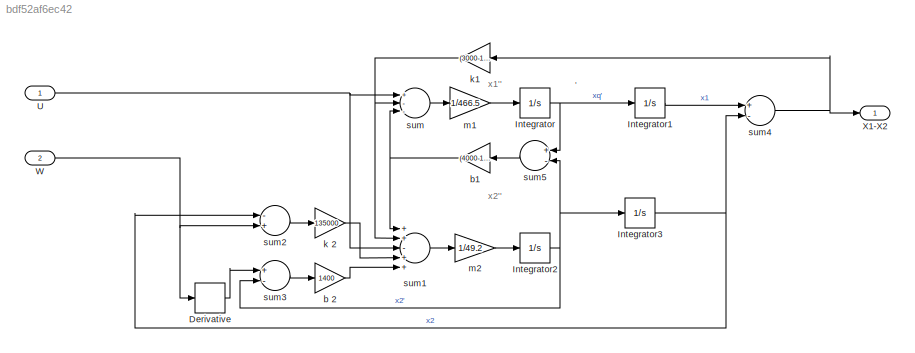
MODEL slx_bdf52af6ec42
KIND model
CONFIG AbsTol = auto
CONFIG FixedStep = auto
CONFIG MaxStep = auto
CONFIG MinStep = auto
CONFIG RelTol = 1e-3
CONFIG SampleTimeConstraint = Unconstrained
CONFIG Solver = VariableStepAuto
CONFIG SolverMode = Auto
CONFIG SolverName = VariableStepAuto
CONFIG StartTime = 0.0
CONFIG StopTime = 10.0
BLOCK [Gain]  b1
  Gain = (4000-1000)*rand + 1000
BLOCK [Gain]  k1
  Gain = (3000-1000)*rand + 1000
BLOCK [Derivative] Derivative
BLOCK [Integrator] Integrator
  Ports = [1, 1]
BLOCK [Integrator] Integrator1
  Ports = [1, 1]
BLOCK [Integrator] Integrator2
  Ports = [1, 1]
BLOCK [Integrator] Integrator3
  Ports = [1, 1]
BLOCK [Inport] U
  IconDisplay = Port number
BLOCK [Inport] W
  IconDisplay = Port number
  Port = 2
BLOCK [Outport] X1-X2
  IconDisplay = Port number
BLOCK [Gain] b 2
  Gain = 1400
BLOCK [Gain] k 2
  Gain = 135000
BLOCK [Gain] m1
  Gain = 1/466.5
BLOCK [Gain] m2
  Gain = 1/49.2
BLOCK [Sum] sum
  Inputs = +--
  Ports = [3, 1]
BLOCK [Sum] sum1
  Inputs = ++-++
  Ports = [5, 1]
BLOCK [Sum] sum2
  Inputs = -+
  Ports = [2, 1]
BLOCK [Sum] sum3
  Inputs = +-
  Ports = [2, 1]
BLOCK [Sum] sum4
  Inputs = +-
  Ports = [2, 1]
BLOCK [Sum] sum5
  Inputs = +-
  Ports = [2, 1]
ANNOTATION (root): '
ANNOTATION (root): x1''
ANNOTATION (root): x2''
NET  b1:1 -> sum1:1, sum:3
NET  k1:1 -> sum1:2, sum:2
LINE Derivative:1 -> sum3:1
LINE Integrator1:1 -> sum4:1
NET Integrator2:1 -> Integrator3:1, sum3:2, sum5:2
NET Integrator3:1 -> sum2:1, sum4:2
NET Integrator:1 -> Integrator1:1, sum5:1
NET U:1 -> sum1:3, sum:1
NET W:1 -> Derivative:1, sum2:2
LINE b 2:1 -> sum1:5
LINE k 2:1 -> sum1:4
LINE m1:1 -> Integrator:1
LINE m2:1 -> Integrator2:1
LINE sum1:1 -> m2:1
LINE sum2:1 -> k 2:1
LINE sum3:1 -> b 2:1
NET sum4:1 ->  k1:1, X1-X2:1
LINE sum5:1 ->  b1:1
LINE sum:1 -> m1:1
note: NET lines group one-source signal fan-out (src -> all destinations, sorted); 1:1 wires keep LINE
